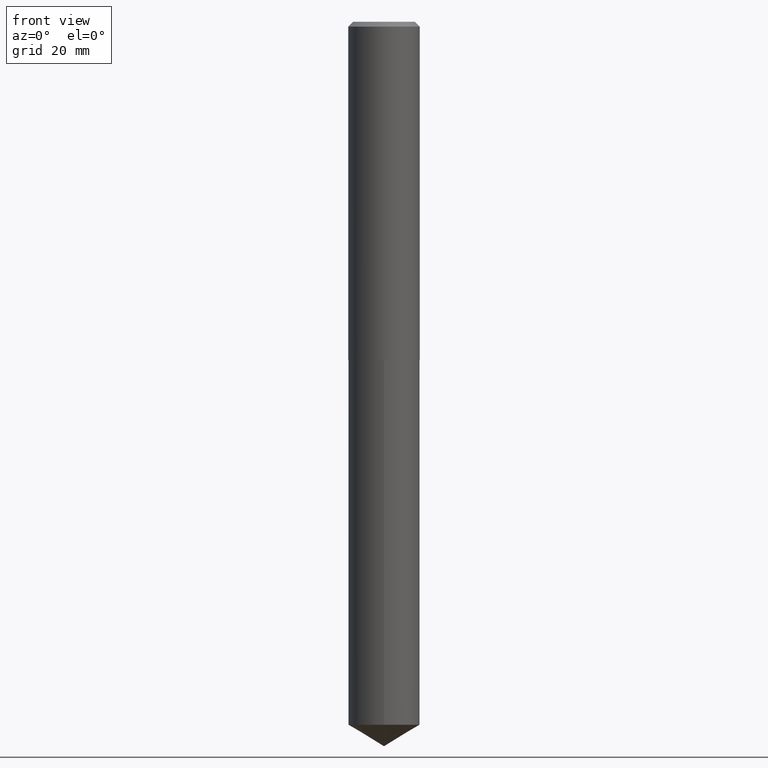
[diagram: clean part render]
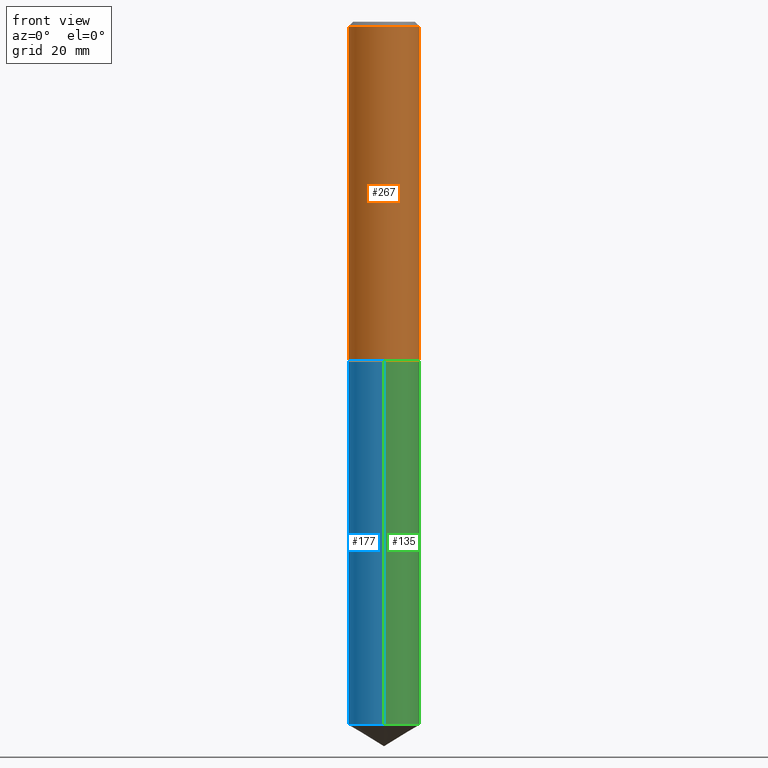
[diagram: same view with three faces highlighted in distinct colors, each labeled with its STEP entity id]
A machine part, front view with three faces highlighted in distinct colors.
Their STEP definitions:

[orange] entity #267 — the highlighted cylindrical surface (edge-blend (fillet) strip) has radius 5.9538 mm, axis along (-0, 0, 1).
#1 = CARTESIAN_POINT ( 'NONE',  ( 0.2344000000000001638, -1.636806451649662094E-15, 1.142975836246568276E-29 ) ) ;
#18 = CARTESIAN_POINT ( 'NONE',  ( -0.2343999999999999972, -2.261618750275622168E-15, -0.03125000000000022204 ) ) ;
#19 = EDGE_CURVE ( 'NONE', #148, #388, #271, .T. ) ;
#26 = EDGE_CURVE ( 'NONE', #33, #148, #217, .T. ) ;
#31 = EDGE_CURVE ( 'NONE', #333, #388, #266, .T. ) ;
#33 = VERTEX_POINT ( 'NONE', #97 ) ;
#42 = ORIENTED_EDGE ( 'NONE', *, *, #26, .T. ) ;
#44 = CARTESIAN_POINT ( 'NONE',  ( 0.000000000000000000, 0.000000000000000000, 0.000000000000000000 ) ) ;
#51 = CARTESIAN_POINT ( 'NONE',  ( 5.424783452760487854E-29, -7.745153053955749600E-15, -2.218300000000000161 ) ) ;
#53 = CARTESIAN_POINT ( 'NONE',  ( 7.642090019328606165E-31, -1.091087918388490760E-16, -0.03125000000000022204 ) ) ;
#58 = ORIENTED_EDGE ( 'NONE', *, *, #19, .T. ) ;
#76 = EDGE_LOOP ( 'NONE', ( #172, #42, #58, #353 ) ) ;
#81 = CYLINDRICAL_SURFACE ( 'NONE', #262, 0.2344000000000001638 ) ;
#84 = LINE ( 'NONE', #115, #274 ) ;
#97 = CARTESIAN_POINT ( 'NONE',  ( -0.2344000000000003026, -6.079640881334072812E-15, -2.218300000000000161 ) ) ;
#107 = DIRECTION ( 'NONE',  ( 1.000000000000000000, -6.982962677686266711E-15, 4.876176775795936353E-29 ) ) ;
#110 = VECTOR ( 'NONE', #117, 39.37007874015748143 ) ;
#115 = CARTESIAN_POINT ( 'NONE',  ( -0.2344000000000001638, 1.665512172621675999E-15, -1.152998385155750805E-29 ) ) ;
#117 = DIRECTION ( 'NONE',  ( -2.445468806185136877E-29, 3.491481338843145188E-15, 1.000000000000000000 ) ) ;
#120 = DIRECTION ( 'NONE',  ( -2.445468806185136877E-29, 3.491481338843145188E-15, 1.000000000000000000 ) ) ;
#148 = VERTEX_POINT ( 'NONE', #283 ) ;
#156 = CARTESIAN_POINT ( 'NONE',  ( 0.2343999999999999972, -1.745915243488510011E-15, -0.03125000000000022204 ) ) ;
#172 = ORIENTED_EDGE ( 'NONE', *, *, #375, .F. ) ;
#180 = DIRECTION ( 'NONE',  ( -2.445468806185136597E-29, 3.491481338843145583E-15, 1.000000000000000000 ) ) ;
#217 = CIRCLE ( 'NONE', #381, 0.2344000000000003026 ) ;
#226 = FACE_OUTER_BOUND ( 'NONE', #76, .T. ) ;
#262 = AXIS2_PLACEMENT_3D ( 'NONE', #44, #290, #107 ) ;
#266 = CIRCLE ( 'NONE', #316, 0.2343999999999999972 ) ;
#267 = ADVANCED_FACE ( 'NONE', ( #226 ), #81, .T. ) ;
#268 = DIRECTION ( 'NONE',  ( -2.445468806185136597E-29, 3.491481338843145583E-15, 1.000000000000000000 ) ) ;
#271 = LINE ( 'NONE', #1, #110 ) ;
#274 = VECTOR ( 'NONE', #120, 39.37007874015748143 ) ;
#283 = CARTESIAN_POINT ( 'NONE',  ( 0.2344000000000003026, -9.381959505605412877E-15, -2.218300000000000161 ) ) ;
#290 = DIRECTION ( 'NONE',  ( -2.445468806185136597E-29, 3.491481338843145583E-15, 1.000000000000000000 ) ) ;
#316 = AXIS2_PLACEMENT_3D ( 'NONE', #53, #180, #365 ) ;
#333 = VERTEX_POINT ( 'NONE', #18 ) ;
#353 = ORIENTED_EDGE ( 'NONE', *, *, #31, .F. ) ;
#365 = DIRECTION ( 'NONE',  ( 1.000000000000000000, -6.982962677686266711E-15, 0.000000000000000000 ) ) ;
#375 = EDGE_CURVE ( 'NONE', #33, #333, #84, .T. ) ;
#381 = AXIS2_PLACEMENT_3D ( 'NONE', #51, #268, #390 ) ;
#388 = VERTEX_POINT ( 'NONE', #156 ) ;
#390 = DIRECTION ( 'NONE',  ( 1.000000000000000000, -6.982962677686265133E-15, 0.000000000000000000 ) ) ;

[blue] entity #177 — the highlighted cylindrical surface (edge-blend (fillet) strip) has radius 5.9538 mm, axis along (-0, 0, 1).
#7 = DIRECTION ( 'NONE',  ( -2.445526104454800886E-29, 3.491399284459771510E-15, 1.000000000000000000 ) ) ;
#12 = DIRECTION ( 'NONE',  ( -2.445526104454800886E-29, 3.491399284459771510E-15, 1.000000000000000000 ) ) ;
#14 = CYLINDRICAL_SURFACE ( 'NONE', #54, 0.2343999999999999972 ) ;
#23 = VERTEX_POINT ( 'NONE', #93 ) ;
#29 = VERTEX_POINT ( 'NONE', #330 ) ;
#52 = EDGE_CURVE ( 'NONE', #23, #358, #150, .T. ) ;
#54 = AXIS2_PLACEMENT_3D ( 'NONE', #67, #7, #254 ) ;
#64 = DIRECTION ( 'NONE',  ( -6.982962677686265922E-15, -1.000000000000000000, 2.330928322239132474E-15 ) ) ;
#67 = CARTESIAN_POINT ( 'NONE',  ( 5.426006187163580656E-29, -7.746898794625170315E-15, -2.218799999999999883 ) ) ;
#74 = EDGE_LOOP ( 'NONE', ( #239, #119, #302, #114 ) ) ;
#75 = LINE ( 'NONE', #347, #348 ) ;
#79 = DIRECTION ( 'NONE',  ( -2.445526104454800605E-29, 3.491399284459771510E-15, 1.000000000000000000 ) ) ;
#85 = AXIS2_PLACEMENT_3D ( 'NONE', #205, #261, #105 ) ;
#93 = CARTESIAN_POINT ( 'NONE',  ( 1.665512172621787426E-15, 0.2343999999999839268, -4.609158270899941456 ) ) ;
#105 = DIRECTION ( 'NONE',  ( -6.982962677686265922E-15, -1.000000000000000000, 3.496392483358698711E-15 ) ) ;
#113 = CARTESIAN_POINT ( 'NONE',  ( 1.665512172621787623E-15, 0.2343999999999922534, -2.218800000000000772 ) ) ;
#114 = ORIENTED_EDGE ( 'NONE', *, *, #248, .F. ) ;
#119 = ORIENTED_EDGE ( 'NONE', *, *, #52, .T. ) ;
#143 = CARTESIAN_POINT ( 'NONE',  ( -1.636806451649606282E-15, -0.2344000000000077411, -2.218799999999998995 ) ) ;
#150 = CIRCLE ( 'NONE', #366, 0.2343999999999999972 ) ;
#171 = LINE ( 'NONE', #143, #336 ) ;
#175 = CARTESIAN_POINT ( 'NONE',  ( -1.636806451649548104E-15, -0.2344000000000160955, -4.609158270899938792 ) ) ;
#177 = ADVANCED_FACE ( 'NONE', ( #306 ), #14, .T. ) ;
#205 = CARTESIAN_POINT ( 'NONE',  ( 5.426006187163580656E-29, -7.746898794625170315E-15, -2.218799999999999883 ) ) ;
#222 = CARTESIAN_POINT ( 'NONE',  ( 1.127168973764882350E-28, -1.609259395124771835E-14, -4.609158270899939680 ) ) ;
#239 = ORIENTED_EDGE ( 'NONE', *, *, #343, .F. ) ;
#248 = EDGE_CURVE ( 'NONE', #287, #29, #354, .T. ) ;
#254 = DIRECTION ( 'NONE',  ( -6.982962677686265922E-15, -1.000000000000000000, 3.496392483358698711E-15 ) ) ;
#261 = DIRECTION ( 'NONE',  ( -2.445526104454800886E-29, 3.491399284459771510E-15, 1.000000000000000000 ) ) ;
#287 = VERTEX_POINT ( 'NONE', #113 ) ;
#302 = ORIENTED_EDGE ( 'NONE', *, *, #346, .T. ) ;
#306 = FACE_OUTER_BOUND ( 'NONE', #74, .T. ) ;
#328 = DIRECTION ( 'NONE',  ( -2.445526104454800605E-29, 3.491399284459771510E-15, 1.000000000000000000 ) ) ;
#330 = CARTESIAN_POINT ( 'NONE',  ( -1.636806451649606282E-15, -0.2344000000000077411, -2.218799999999998995 ) ) ;
#336 = VECTOR ( 'NONE', #328, 39.37007874015748143 ) ;
#343 = EDGE_CURVE ( 'NONE', #23, #287, #75, .T. ) ;
#346 = EDGE_CURVE ( 'NONE', #358, #29, #171, .T. ) ;
#347 = CARTESIAN_POINT ( 'NONE',  ( 1.665512172621728853E-15, 0.2343999999999922534, -2.218800000000000772 ) ) ;
#348 = VECTOR ( 'NONE', #79, 39.37007874015748143 ) ;
#354 = CIRCLE ( 'NONE', #85, 0.2343999999999999972 ) ;
#358 = VERTEX_POINT ( 'NONE', #175 ) ;
#366 = AXIS2_PLACEMENT_3D ( 'NONE', #222, #12, #64 ) ;

[green] entity #135 — the highlighted cylindrical surface (edge-blend (fillet) strip) has radius 5.9538 mm, axis along (-0, 0, 1).
#21 = ORIENTED_EDGE ( 'NONE', *, *, #343, .T. ) ;
#23 = VERTEX_POINT ( 'NONE', #93 ) ;
#29 = VERTEX_POINT ( 'NONE', #330 ) ;
#35 = ORIENTED_EDGE ( 'NONE', *, *, #332, .T. ) ;
#36 = CIRCLE ( 'NONE', #372, 0.2343999999999999972 ) ;
#37 = DIRECTION ( 'NONE',  ( -2.445526104454800886E-29, 3.491399284459771510E-15, 1.000000000000000000 ) ) ;
#48 = CIRCLE ( 'NONE', #286, 0.2343999999999999972 ) ;
#61 = CARTESIAN_POINT ( 'NONE',  ( 5.426006187163580656E-29, -7.746898794625170315E-15, -2.218799999999999883 ) ) ;
#71 = AXIS2_PLACEMENT_3D ( 'NONE', #61, #185, #165 ) ;
#75 = LINE ( 'NONE', #347, #348 ) ;
#79 = DIRECTION ( 'NONE',  ( -2.445526104454800605E-29, 3.491399284459771510E-15, 1.000000000000000000 ) ) ;
#87 = EDGE_CURVE ( 'NONE', #29, #287, #36, .T. ) ;
#89 = ORIENTED_EDGE ( 'NONE', *, *, #346, .F. ) ;
#93 = CARTESIAN_POINT ( 'NONE',  ( 1.665512172621787426E-15, 0.2343999999999839268, -4.609158270899941456 ) ) ;
#113 = CARTESIAN_POINT ( 'NONE',  ( 1.665512172621787623E-15, 0.2343999999999922534, -2.218800000000000772 ) ) ;
#135 = ADVANCED_FACE ( 'NONE', ( #219 ), #161, .T. ) ;
#136 = CARTESIAN_POINT ( 'NONE',  ( 1.127168973764882350E-28, -1.609259395124771835E-14, -4.609158270899939680 ) ) ;
#143 = CARTESIAN_POINT ( 'NONE',  ( -1.636806451649606282E-15, -0.2344000000000077411, -2.218799999999998995 ) ) ;
#161 = CYLINDRICAL_SURFACE ( 'NONE', #71, 0.2343999999999999972 ) ;
#165 = DIRECTION ( 'NONE',  ( -6.982962677686265922E-15, -1.000000000000000000, 3.496392483358698711E-15 ) ) ;
#171 = LINE ( 'NONE', #143, #336 ) ;
#175 = CARTESIAN_POINT ( 'NONE',  ( -1.636806451649548104E-15, -0.2344000000000160955, -4.609158270899938792 ) ) ;
#185 = DIRECTION ( 'NONE',  ( -2.445526104454800886E-29, 3.491399284459771510E-15, 1.000000000000000000 ) ) ;
#219 = FACE_OUTER_BOUND ( 'NONE', #265, .T. ) ;
#255 = DIRECTION ( 'NONE',  ( -2.445526104454800886E-29, 3.491399284459771510E-15, 1.000000000000000000 ) ) ;
#265 = EDGE_LOOP ( 'NONE', ( #35, #21, #357, #89 ) ) ;
#285 = DIRECTION ( 'NONE',  ( -6.982962677686265922E-15, -1.000000000000000000, 2.330928322239132474E-15 ) ) ;
#286 = AXIS2_PLACEMENT_3D ( 'NONE', #136, #255, #285 ) ;
#287 = VERTEX_POINT ( 'NONE', #113 ) ;
#309 = DIRECTION ( 'NONE',  ( -6.982962677686265922E-15, -1.000000000000000000, 3.496392483358698711E-15 ) ) ;
#328 = DIRECTION ( 'NONE',  ( -2.445526104454800605E-29, 3.491399284459771510E-15, 1.000000000000000000 ) ) ;
#330 = CARTESIAN_POINT ( 'NONE',  ( -1.636806451649606282E-15, -0.2344000000000077411, -2.218799999999998995 ) ) ;
#332 = EDGE_CURVE ( 'NONE', #358, #23, #48, .T. ) ;
#336 = VECTOR ( 'NONE', #328, 39.37007874015748143 ) ;
#343 = EDGE_CURVE ( 'NONE', #23, #287, #75, .T. ) ;
#346 = EDGE_CURVE ( 'NONE', #358, #29, #171, .T. ) ;
#347 = CARTESIAN_POINT ( 'NONE',  ( 1.665512172621728853E-15, 0.2343999999999922534, -2.218800000000000772 ) ) ;
#348 = VECTOR ( 'NONE', #79, 39.37007874015748143 ) ;
#357 = ORIENTED_EDGE ( 'NONE', *, *, #87, .F. ) ;
#358 = VERTEX_POINT ( 'NONE', #175 ) ;
#363 = CARTESIAN_POINT ( 'NONE',  ( 5.426006187163580656E-29, -7.746898794625170315E-15, -2.218799999999999883 ) ) ;
#372 = AXIS2_PLACEMENT_3D ( 'NONE', #363, #37, #309 ) ;